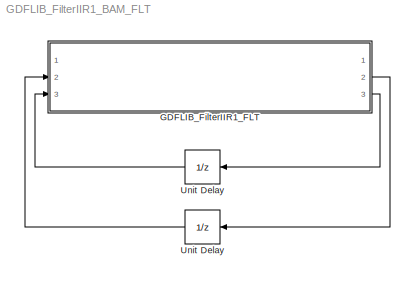
MODEL GDFLIB_FilterIIR1_BAM_FLT
KIND model
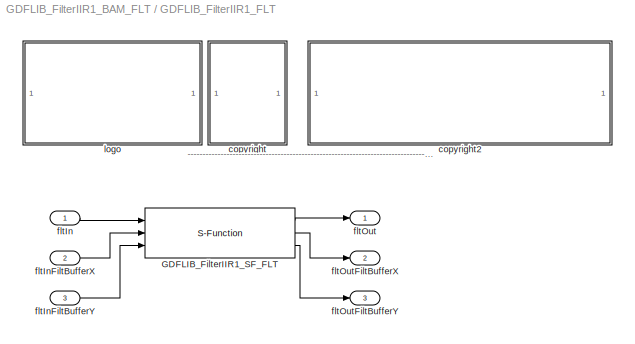
BLOCK [SubSystem] GDFLIB_FilterIIR1_FLT
  Ports = [3, 3]
  RequestExecContextInheritance = off
  SID = 1
BLOCK [S-Function] GDFLIB_FilterIIR1_FLT/GDFLIB_FilterIIR1_SF_FLT
  EnableBusSupport = off
  FunctionName = GDFLIB_FilterIIR1_SF_FLT
  Parameters = fltB0,fltB1,fltA1
  Ports = [3, 3]
  SID = 5
BLOCK [SubSystem] GDFLIB_FilterIIR1_FLT/<copyright redacted>
  Ports = []
  RequestExecContextInheritance = off
  SID = 6
BLOCK [SubSystem] GDFLIB_FilterIIR1_FLT/copyright2
  Ports = []
  RequestExecContextInheritance = off
  SID = 7
BLOCK [Inport] GDFLIB_FilterIIR1_FLT/fltIn
  IconDisplay = Port number
  SID = 2
BLOCK [Inport] GDFLIB_FilterIIR1_FLT/fltInFiltBufferX
  IconDisplay = Port number
  Port = 2
  SID = 3
BLOCK [Inport] GDFLIB_FilterIIR1_FLT/fltInFiltBufferY
  IconDisplay = Port number
  Port = 3
  SID = 4
BLOCK [Outport] GDFLIB_FilterIIR1_FLT/fltOut
  IconDisplay = Port number
  SID = 9
BLOCK [Outport] GDFLIB_FilterIIR1_FLT/fltOutFiltBufferX
  IconDisplay = Port number
  Port = 2
  SID = 10
BLOCK [Outport] GDFLIB_FilterIIR1_FLT/fltOutFiltBufferY
  IconDisplay = Port number
  Port = 3
  SID = 11
BLOCK [SubSystem] GDFLIB_FilterIIR1_FLT/logo
  Ports = []
  RequestExecContextInheritance = off
  SID = 8
BLOCK [UnitDelay] Unit Delay
  SID = 13
  SampleTime = -1
BLOCK [UnitDelay] Unit Delay 
  SID = 14
  SampleTime = -1
ANNOTATION GDFLIB_FilterIIR1_FLT: ---------------------------------------------------------------------------------------------------------------------------------------------------------------------------------------------------
LINE GDFLIB_FilterIIR1_FLT/GDFLIB_FilterIIR1_SF_FLT:1 -> GDFLIB_FilterIIR1_FLT/fltOut:1
LINE GDFLIB_FilterIIR1_FLT/GDFLIB_FilterIIR1_SF_FLT:2 -> GDFLIB_FilterIIR1_FLT/fltOutFiltBufferX:1
LINE GDFLIB_FilterIIR1_FLT/GDFLIB_FilterIIR1_SF_FLT:3 -> GDFLIB_FilterIIR1_FLT/fltOutFiltBufferY:1
LINE GDFLIB_FilterIIR1_FLT/fltIn:1 -> GDFLIB_FilterIIR1_FLT/GDFLIB_FilterIIR1_SF_FLT:1
LINE GDFLIB_FilterIIR1_FLT/fltInFiltBufferX:1 -> GDFLIB_FilterIIR1_FLT/GDFLIB_FilterIIR1_SF_FLT:2
LINE GDFLIB_FilterIIR1_FLT/fltInFiltBufferY:1 -> GDFLIB_FilterIIR1_FLT/GDFLIB_FilterIIR1_SF_FLT:3
LINE GDFLIB_FilterIIR1_FLT:2 -> Unit Delay :1
LINE GDFLIB_FilterIIR1_FLT:3 -> Unit Delay:1
LINE Unit Delay :1 -> GDFLIB_FilterIIR1_FLT:2
LINE Unit Delay:1 -> GDFLIB_FilterIIR1_FLT:3
